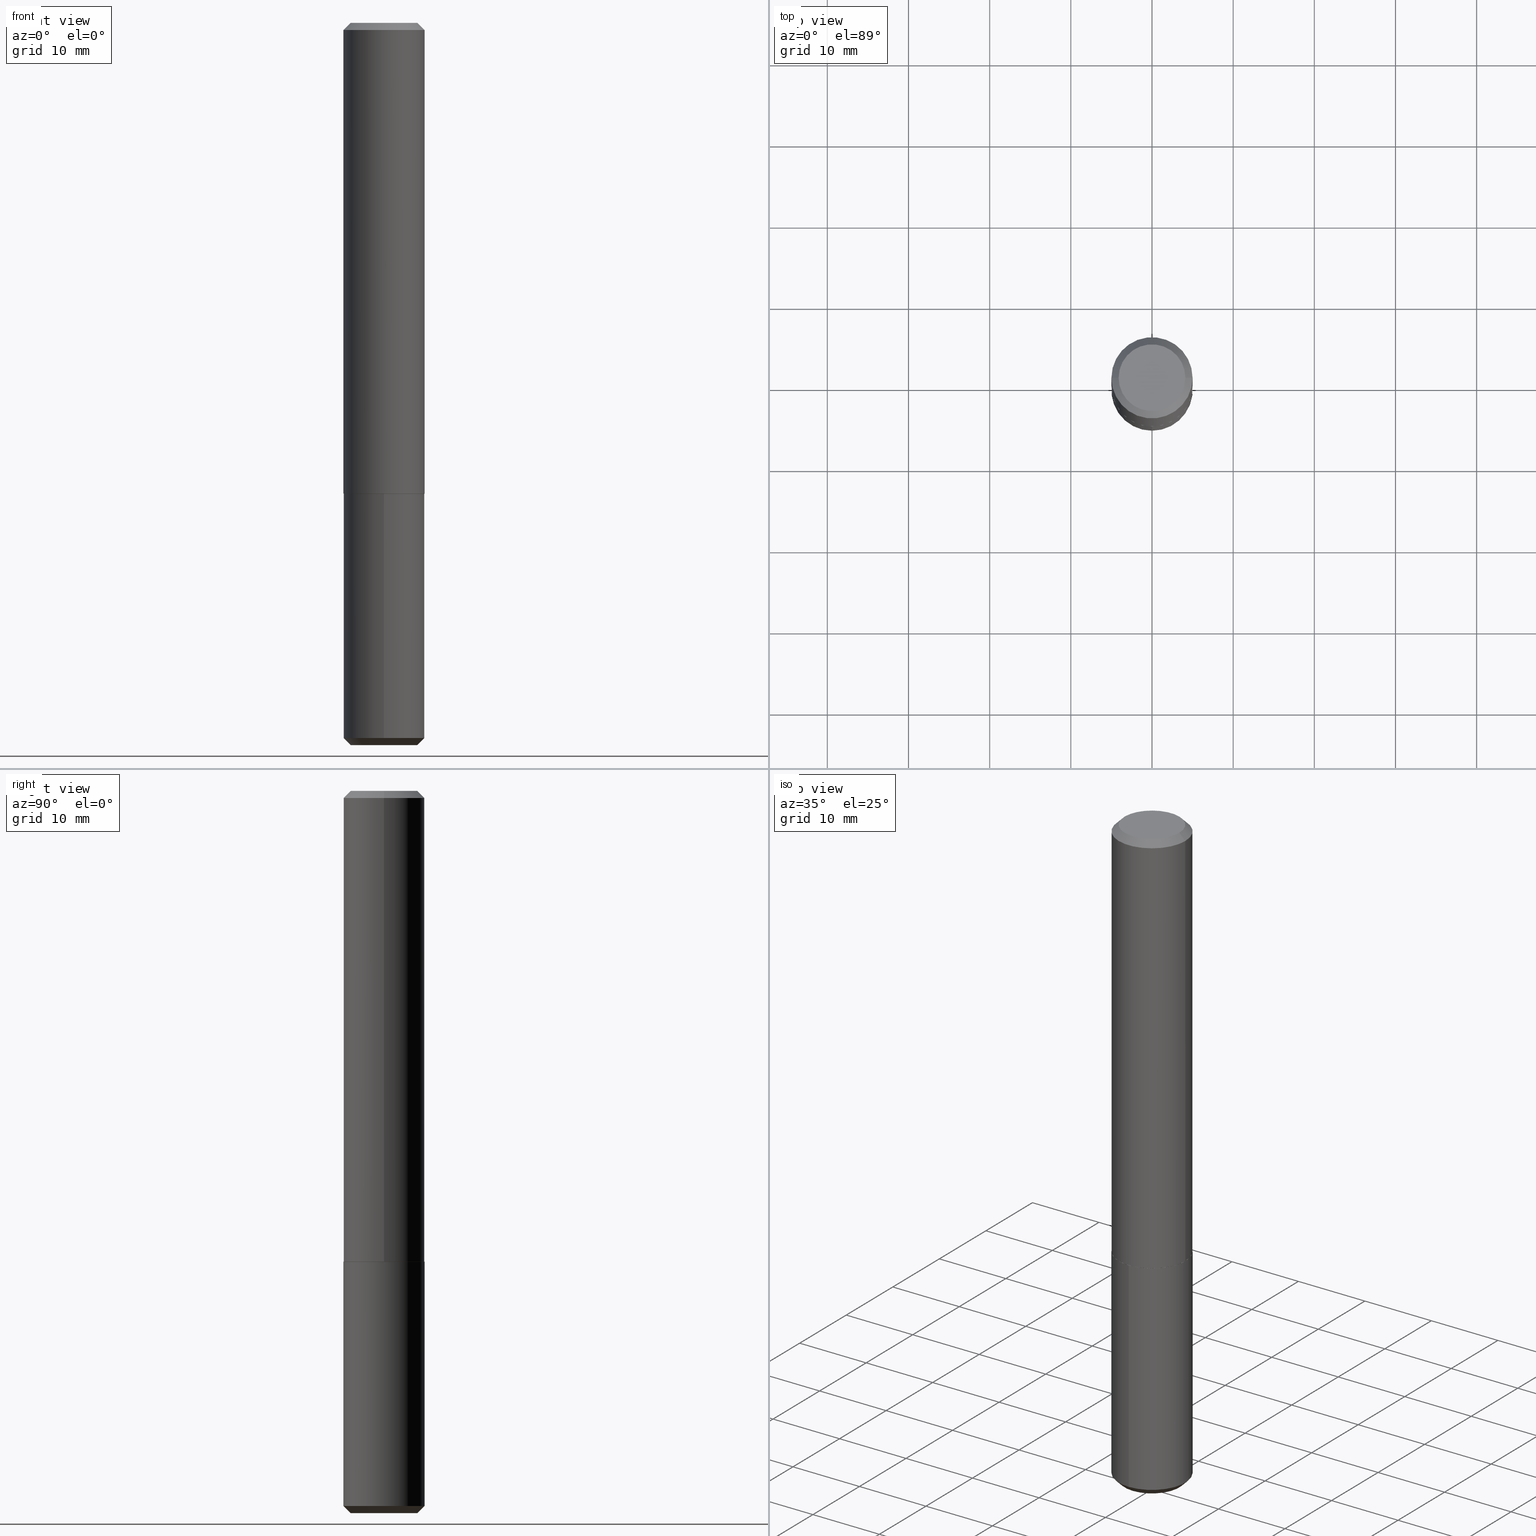
[diagram: canonical four-view strip — front | top / right | iso, engineering-drawing reading convention]
A machine part, canonical four-view strip (front | top / right | iso — engineering-drawing reading convention). The complete STEP part file that produces these views, byte-faithful:
ISO-10303-21;
HEADER;
FILE_DESCRIPTION (( 'STEP AP203' ),
    '1' );
FILE_NAME ('81029.STEP',
    '2024-04-19T13:36:28',
    ( '' ),
    ( '' ),
    'SwSTEP 2.0',
    'SolidWorks 2023',
    '' );
FILE_SCHEMA (( 'CONFIG_CONTROL_DESIGN' ));
ENDSEC;

DATA;
#1 = AXIS2_PLACEMENT_3D ( 'NONE', #25, #352, #266 ) ;
#2 = FACE_OUTER_BOUND ( 'NONE', #52, .T. ) ;
#3 = VERTEX_POINT ( 'NONE', #251 ) ;
#4 = MANIFOLD_SOLID_BREP ( 'Body-Move/Copy2[1]', #363 ) ;
#5 = APPROVAL_PERSON_ORGANIZATION ( #32, #357, #267 ) ;
#6 = PRODUCT ( '81029', '81029', '', ( #392 ) ) ;
#7 = CC_DESIGN_DATE_AND_TIME_ASSIGNMENT ( #298, #131, ( #319 ) ) ;
#8 = AXIS2_PLACEMENT_3D ( 'NONE', #361, #206, #204 ) ;
#9 = CARTESIAN_POINT ( 'NONE',  ( 5.583983472043140562E-29, -7.972448489114438042E-15, -2.283399999999999874 ) ) ;
#10 = ORIENTED_EDGE ( 'NONE', *, *, #294, .F. ) ;
#11 = VERTEX_POINT ( 'NONE', #373 ) ;
#12 = CARTESIAN_POINT ( 'NONE',  ( 8.575801720781588931E-29, -1.222360010435347805E-14, -3.503899999999999793 ) ) ;
#13 = ORIENTED_EDGE ( 'NONE', *, *, #20, .T. ) ;
#14 = CIRCLE ( 'NONE', #8, 0.1968500000000000250 ) ;
#15 = EDGE_CURVE ( 'NONE', #145, #243, #375, .T. ) ;
#16 = CIRCLE ( 'NONE', #216, 0.1618500000000000216 ) ;
#17 = VERTEX_POINT ( 'NONE', #91 ) ;
#18 = APPLICATION_PROTOCOL_DEFINITION ( 'international standard', 'config_control_design', 1994, #221 ) ;
#19 = EDGE_LOOP ( 'NONE', ( #301, #249, #39, #182 ) ) ;
#20 = EDGE_CURVE ( 'NONE', #145, #3, #345, .T. ) ;
#21 = DIRECTION ( 'NONE',  ( -2.438088387897960049E-29, 3.491481338843145188E-15, 1.000000000000000000 ) ) ;
#22 = AXIS2_PLACEMENT_3D ( 'NONE', #86, #404, #312 ) ;
#23 = DIRECTION ( 'NONE',  ( -2.451305406586192978E-29, 3.483122994870167634E-15, 1.000000000000000000 ) ) ;
#24 = AXIS2_PLACEMENT_3D ( 'NONE', #51, #186, #54 ) ;
#25 = CARTESIAN_POINT ( 'NONE',  ( 5.582760737640047761E-29, -7.970702748445015750E-15, -2.282899999999999707 ) ) ;
#26 = CARTESIAN_POINT ( 'NONE',  ( -0.1963500000000006351, -6.574648600275367585E-15, -2.283399999999999874 ) ) ;
#27 = DATE_AND_TIME ( #269, #289 ) ;
#28 = DIRECTION ( 'NONE',  ( -2.451305406586193258E-29, 3.483122994870168029E-15, 1.000000000000000000 ) ) ;
#29 = EDGE_CURVE ( 'NONE', #243, #145, #358, .T. ) ;
#30 = FACE_OUTER_BOUND ( 'NONE', #282, .T. ) ;
#31 = CIRCLE ( 'NONE', #24, 0.1618500000000000216 ) ;
#32 = PERSON_AND_ORGANIZATION ( #193, #142 ) ;
#33 = LINE ( 'NONE', #170, #178 ) ;
#34 = DATE_AND_TIME ( #205, #159 ) ;
#35 = ADVANCED_FACE ( 'NONE', ( #168 ), #379, .T. ) ;
#36 = CARTESIAN_POINT ( 'NONE',  ( 5.582760737640047761E-29, -7.970702748445015750E-15, -2.282899999999999707 ) ) ;
#37 = ORIENTED_EDGE ( 'NONE', *, *, #133, .F. ) ;
#38 = DIRECTION ( 'NONE',  ( 2.445468806185136597E-29, -3.491481338843145583E-15, -1.000000000000000000 ) ) ;
#39 = ORIENTED_EDGE ( 'NONE', *, *, #394, .T. ) ;
#40 = ORIENTED_EDGE ( 'NONE', *, *, #29, .F. ) ;
#41 = ORIENTED_EDGE ( 'NONE', *, *, #15, .T. ) ;
#42 = CC_DESIGN_PERSON_AND_ORGANIZATION_ASSIGNMENT ( #65, #127, ( #109 ) ) ;
#43 = ORIENTED_EDGE ( 'NONE', *, *, #247, .F. ) ;
#44 = ORIENTED_EDGE ( 'NONE', *, *, #306, .F. ) ;
#45 = APPROVAL_PERSON_ORGANIZATION ( #330, #202, #136 ) ;
#46 = DIRECTION ( 'NONE',  ( -1.000000000000000000, 6.982962677686265922E-15, 0.000000000000000000 ) ) ;
#47 = ORIENTED_EDGE ( 'NONE', *, *, #380, .T. ) ;
#48 = CARTESIAN_POINT ( 'NONE',  ( 1.398703375343841999E-15, 0.1968499999999879235, -3.468900000000000095 ) ) ;
#49 = EDGE_CURVE ( 'NONE', #372, #371, #354, .T. ) ;
#50 = VERTEX_POINT ( 'NONE', #26 ) ;
#51 = CARTESIAN_POINT ( 'NONE',  ( -4.406900505805576113E-46, 6.291885972637398948E-32, 1.802067764945330938E-17 ) ) ;
#52 = EDGE_LOOP ( 'NONE', ( #153, #175, #146, #284 ) ) ;
#53 = CIRCLE ( 'NONE', #223, 0.1963500000000006351 ) ;
#54 = DIRECTION ( 'NONE',  ( 1.000000000000000000, -6.982962677686265922E-15, 4.876910603302640738E-29 ) ) ;
#55 = ORIENTED_EDGE ( 'NONE', *, *, #15, .F. ) ;
#56 = CARTESIAN_POINT ( 'NONE',  ( -0.1968500000000001915, 1.398703375343758577E-15, -9.682923725166790684E-30 ) ) ;
#57 = APPROVAL ( #129, 'UNSPECIFIED' ) ;
#58 = PLANE ( 'NONE',  #272 ) ;
#59 = DATE_AND_TIME ( #291, #385 ) ;
#60 = DIRECTION ( 'NONE',  ( 1.000000000000000000, -6.982962677686265922E-15, 4.876910603302640738E-29 ) ) ;
#61 =( GEOMETRIC_REPRESENTATION_CONTEXT ( 3 ) GLOBAL_UNCERTAINTY_ASSIGNED_CONTEXT ( ( #397 ) ) GLOBAL_UNIT_ASSIGNED_CONTEXT ( ( #258, #255, #316 ) ) REPRESENTATION_CONTEXT ( 'NONE', 'WORKASPACE' ) );
#62 = CARTESIAN_POINT ( 'NONE',  ( 5.583983472043140562E-29, -7.972448489114438042E-15, -2.283399999999999874 ) ) ;
#63 = ADVANCED_FACE ( 'NONE', ( #410 ), #265, .F. ) ;
#64 = CARTESIAN_POINT ( 'NONE',  ( 0.1618500000000000216, -1.291531239330079675E-15, 1.802067764946177423E-17 ) ) ;
#65 = PERSON_AND_ORGANIZATION ( #193, #142 ) ;
#66 = FACE_OUTER_BOUND ( 'NONE', #364, .T. ) ;
#67 = PERSON_AND_ORGANIZATION_ROLE ( 'design_supplier' ) ;
#68 = VECTOR ( 'NONE', #181, 39.37007874015748143 ) ;
#69 = LINE ( 'NONE', #234, #253 ) ;
#70 = AXIS2_PLACEMENT_3D ( 'NONE', #313, #248, #192 ) ;
#71 = DIRECTION ( 'NONE',  ( -6.982962677686265133E-15, -1.000000000000000000, 2.775563112689116301E-15 ) ) ;
#72 = FACE_OUTER_BOUND ( 'NONE', #246, .T. ) ;
#73 = ORIENTED_EDGE ( 'NONE', *, *, #79, .T. ) ;
#74 = EDGE_LOOP ( 'NONE', ( #73, #215 ) ) ;
#75 = EDGE_CURVE ( 'NONE', #212, #50, #53, .T. ) ;
#76 = DESIGN_CONTEXT ( 'detailed design', #84, 'design' ) ;
#77 = DIRECTION ( 'NONE',  ( 1.000000000000000000, -6.982962677686265922E-15, 0.000000000000000000 ) ) ;
#78 = ORIENTED_EDGE ( 'NONE', *, *, #394, .F. ) ;
#79 = EDGE_CURVE ( 'NONE', #3, #307, #137, .T. ) ;
#80 = VERTEX_POINT ( 'NONE', #322 ) ;
#81 = SHAPE_DEFINITION_REPRESENTATION ( #239, #154 ) ;
#82 = LINE ( 'NONE', #220, #124 ) ;
#83 = EDGE_LOOP ( 'NONE', ( #149, #224, #13, #180 ) ) ;
#84 = APPLICATION_CONTEXT ( 'configuration controlled 3d designs of mechanical parts and assemblies' ) ;
#85 =( LENGTH_UNIT ( ) NAMED_UNIT ( * ) SI_UNIT ( $, .METRE. ) );
#86 = CARTESIAN_POINT ( 'NONE',  ( 8.490006031551072042E-29, -1.210169079953302144E-14, -3.468899999999999650 ) ) ;
#87 = CONICAL_SURFACE ( 'NONE', #112, 0.1968500000000000250, 0.7853981633974447263 ) ;
#88 = DIRECTION ( 'NONE',  ( 0.000000000000000000, 0.000000000000000000, 1.000000000000000000 ) ) ;
#89 = LINE ( 'NONE', #226, #236 ) ;
#90 = CONICAL_SURFACE ( 'NONE', #334, 0.1968500000000003303, 0.7853981633969702170 ) ;
#91 = CARTESIAN_POINT ( 'NONE',  ( 1.274358396585824356E-15, 0.1618499999999877814, -3.503900000000000237 ) ) ;
#92 = DIRECTION ( 'NONE',  ( 1.000000000000000000, -6.982962677686261977E-15, 0.000000000000000000 ) ) ;
#93 = DIRECTION ( 'NONE',  ( -2.445468806185136597E-29, 3.491481338843145583E-15, 1.000000000000000000 ) ) ;
#94 = CARTESIAN_POINT ( 'NONE',  ( 5.582760737640047761E-29, -7.970702748445015750E-15, -2.282899999999999707 ) ) ;
#95 = LINE ( 'NONE', #158, #150 ) ;
#96 = DIRECTION ( 'NONE',  ( -2.445468806185136877E-29, 3.491481338843145188E-15, 1.000000000000000000 ) ) ;
#97 = APPLICATION_PROTOCOL_DEFINITION ( 'international standard', 'config_control_design', 1994, #84 ) ;
#98 = VECTOR ( 'NONE', #122, 39.37007874015748143 ) ;
#99 = ADVANCED_FACE ( 'NONE', ( #30 ), #58, .F. ) ;
#100 = CONICAL_SURFACE ( 'NONE', #377, 0.1968500000000000250, 0.7853981633974479459 ) ;
#101 = DIRECTION ( 'NONE',  ( 1.000000000000000000, -6.982962677686266711E-15, 4.876176775795935793E-29 ) ) ;
#102 = DATE_AND_TIME ( #165, #225 ) ;
#103 = CARTESIAN_POINT ( 'NONE',  ( 5.583983472043140562E-29, -7.972448489114438042E-15, -2.283399999999999874 ) ) ;
#104 = DIRECTION ( 'NONE',  ( -2.451305406586193258E-29, 3.483122994870168029E-15, 1.000000000000000000 ) ) ;
#105 = ADVANCED_FACE ( 'NONE', ( #227 ), #87, .T. ) ;
#106 = COORDINATED_UNIVERSAL_TIME_OFFSET ( 5, 0, .BEHIND. ) ;
#107 = CIRCLE ( 'NONE', #391, 0.1618500000000000216 ) ;
#108 = DIRECTION ( 'NONE',  ( -2.451305406586193258E-29, 3.483122994870168029E-15, 1.000000000000000000 ) ) ;
#109 = PRODUCT_DEFINITION_FORMATION_WITH_SPECIFIED_SOURCE ( 'ANY', '', #6, .NOT_KNOWN. ) ;
#110 = APPROVAL_DATE_TIME ( #27, #202 ) ;
#111 = CARTESIAN_POINT ( 'NONE',  ( -2.203450252902788057E-46, 3.145942986318699474E-32, 9.010338824726654690E-18 ) ) ;
#112 = AXIS2_PLACEMENT_3D ( 'NONE', #190, #126, #134 ) ;
#113 = EDGE_CURVE ( 'NONE', #11, #372, #325, .T. ) ;
#114 = ORIENTED_EDGE ( 'NONE', *, *, #264, .T. ) ;
#115 = CARTESIAN_POINT ( 'NONE',  ( -1.130192509383436643E-15, -0.1618500000000122341, -3.503899999999999348 ) ) ;
#116 = ORIENTED_EDGE ( 'NONE', *, *, #201, .T. ) ;
#117 = EDGE_CURVE ( 'NONE', #11, #219, #347, .T. ) ;
#118 = ORIENTED_EDGE ( 'NONE', *, *, #388, .T. ) ;
#119 = EDGE_LOOP ( 'NONE', ( #43, #114, #367, #40 ) ) ;
#120 = ORIENTED_EDGE ( 'NONE', *, *, #362, .T. ) ;
#121 = PLANE ( 'NONE',  #70 ) ;
#122 = DIRECTION ( 'NONE',  ( -2.451305406586192978E-29, 3.483122994870167634E-15, 1.000000000000000000 ) ) ;
#123 = CC_DESIGN_PERSON_AND_ORGANIZATION_ASSIGNMENT ( #260, #293, ( #135 ) ) ;
#124 = VECTOR ( 'NONE', #250, 39.37007874015748143 ) ;
#125 = FACE_OUTER_BOUND ( 'NONE', #365, .T. ) ;
#126 = DIRECTION ( 'NONE',  ( 2.445468806185136597E-29, -3.491481338843145583E-15, -1.000000000000000000 ) ) ;
#127 = PERSON_AND_ORGANIZATION_ROLE ( 'creator' ) ;
#128 = CARTESIAN_POINT ( 'NONE',  ( 0.000000000000000000, 0.000000000000000000, 0.000000000000000000 ) ) ;
#129 = APPROVAL_STATUS ( 'not_yet_approved' ) ;
#130 = DIRECTION ( 'NONE',  ( -0.7071067811862092878, 7.493145998869131426E-15, 0.7071067811868855246 ) ) ;
#131 = DATE_TIME_ROLE ( 'classification_date' ) ;
#132 = DIMENSIONAL_EXPONENTS ( 1.000000000000000000, 0.000000000000000000, 0.000000000000000000, 0.000000000000000000, 0.000000000000000000, 0.000000000000000000, 0.000000000000000000 ) ;
#133 = EDGE_CURVE ( 'NONE', #219, #371, #333, .T. ) ;
#134 = DIRECTION ( 'NONE',  ( -1.000000000000000000, 6.982962677686265922E-15, 0.000000000000000000 ) ) ;
#135 = PRODUCT_DEFINITION ( 'UNKNOWN', '', #109, #76 ) ;
#136 = APPROVAL_ROLE ( '' ) ;
#137 = CIRCLE ( 'NONE', #235, 0.1968500000000000250 ) ;
#138 = DIRECTION ( 'NONE',  ( -2.451305406586193258E-29, 3.483122994870168029E-15, 1.000000000000000000 ) ) ;
#139 = CIRCLE ( 'NONE', #346, 0.1968500000000000250 ) ;
#140 = ADVANCED_FACE ( 'NONE', ( #125 ), #405, .T. ) ;
#141 = APPROVAL_DATE_TIME ( #34, #357 ) ;
#142 = ORGANIZATION ( 'UNSPECIFIED', 'UNSPECIFIED', '' ) ;
#143 = DIRECTION ( 'NONE',  ( 0.7071067811862092878, -2.468850131078715470E-15, 0.7071067811868855246 ) ) ;
#144 = ADVANCED_FACE ( 'NONE', ( #161 ), #290, .T. ) ;
#145 = VERTEX_POINT ( 'NONE', #326 ) ;
#146 = ORIENTED_EDGE ( 'NONE', *, *, #117, .T. ) ;
#147 = DIRECTION ( 'NONE',  ( 2.438088387897960049E-29, -3.491481338843145188E-15, -1.000000000000000000 ) ) ;
#148 = AXIS2_PLACEMENT_3D ( 'NONE', #275, #366, #369 ) ;
#149 = ORIENTED_EDGE ( 'NONE', *, *, #380, .F. ) ;
#150 = VECTOR ( 'NONE', #320, 39.37007874015748143 ) ;
#151 = ORIENTED_EDGE ( 'NONE', *, *, #133, .T. ) ;
#152 = DIRECTION ( 'NONE',  ( -6.982962677686265922E-15, -1.000000000000000000, 3.375777563996617685E-15 ) ) ;
#153 = ORIENTED_EDGE ( 'NONE', *, *, #49, .F. ) ;
#154 = ADVANCED_BREP_SHAPE_REPRESENTATION ( '81029', ( #4, #276, #406 ), #61 ) ;
#155 = CARTESIAN_POINT ( 'NONE',  ( 5.582760737640047761E-29, -7.970702748445015750E-15, -2.282899999999999707 ) ) ;
#156 = AXIS2_PLACEMENT_3D ( 'NONE', #111, #147, #214 ) ;
#157 = DIRECTION ( 'NONE',  ( -2.445468806185136597E-29, 3.491481338843145583E-15, 1.000000000000000000 ) ) ;
#158 = CARTESIAN_POINT ( 'NONE',  ( 0.1968500000000000250, -1.472690877720836990E-15, -0.03500000000000023231 ) ) ;
#159 = LOCAL_TIME ( 9, 36, 28.00000000000000000, #106 ) ;
#160 = ADVANCED_FACE ( 'NONE', ( #408 ), #295, .T. ) ;
#161 = FACE_OUTER_BOUND ( 'NONE', #280, .T. ) ;
#162 = CARTESIAN_POINT ( 'NONE',  ( 5.583983472043140562E-29, -7.972448489114438042E-15, -2.283399999999999874 ) ) ;
#163 = COORDINATED_UNIVERSAL_TIME_OFFSET ( 5, 0, .BEHIND. ) ;
#164 = CARTESIAN_POINT ( 'NONE',  ( 8.490006031551072042E-29, -1.210169079953302144E-14, -3.468899999999999650 ) ) ;
#165 = CALENDAR_DATE ( 2024, 19, 4 ) ;
#166 = CC_DESIGN_APPROVAL ( #202, ( #135 ) ) ;
#167 = CIRCLE ( 'NONE', #230, 0.1963500000000006351 ) ;
#168 = FACE_OUTER_BOUND ( 'NONE', #83, .T. ) ;
#169 = APPROVAL_STATUS ( 'not_yet_approved' ) ;
#170 = CARTESIAN_POINT ( 'NONE',  ( -1.374596203102456609E-15, -0.1968500000000120986, -3.468899999999999206 ) ) ;
#171 = CARTESIAN_POINT ( 'NONE',  ( 1.398703375343841999E-15, 0.1968499999999920591, -2.283400000000000762 ) ) ;
#172 = ORIENTED_EDGE ( 'NONE', *, *, #113, .F. ) ;
#173 = PRODUCT_RELATED_PRODUCT_CATEGORY ( 'detail', '', ( #6 ) ) ;
#174 = CARTESIAN_POINT ( 'NONE',  ( 8.559140821648035612E-31, -1.222018468595109198E-16, -0.03500000000000023231 ) ) ;
#175 = ORIENTED_EDGE ( 'NONE', *, *, #306, .T. ) ;
#176 = CLOSED_SHELL ( 'NONE', ( #283, #160, #396, #99, #140, #268, #105, #218 ) ) ;
#177 = ORIENTED_EDGE ( 'NONE', *, *, #113, .T. ) ;
#178 = VECTOR ( 'NONE', #331, 39.37007874015748143 ) ;
#179 = DIRECTION ( 'NONE',  ( -2.445468806185136597E-29, 3.491481338843145583E-15, 1.000000000000000000 ) ) ;
#180 = ORIENTED_EDGE ( 'NONE', *, *, #279, .F. ) ;
#181 = DIRECTION ( 'NONE',  ( 5.024295867788060023E-15, 0.7071067811865496822, 0.7071067811865453523 ) ) ;
#182 = ORIENTED_EDGE ( 'NONE', *, *, #328, .T. ) ;
#183 = VECTOR ( 'NONE', #96, 39.37007874015748143 ) ;
#184 = ORIENTED_EDGE ( 'NONE', *, *, #237, .T. ) ;
#185 = CC_DESIGN_PERSON_AND_ORGANIZATION_ASSIGNMENT ( #387, #416, ( #6 ) ) ;
#186 = DIRECTION ( 'NONE',  ( -2.445468806185136597E-29, 3.491481338843145583E-15, 1.000000000000000000 ) ) ;
#187 = CARTESIAN_POINT ( 'NONE',  ( -1.374596203102485599E-15, -0.1968500000000079631, -2.283399999999998986 ) ) ;
#188 = DIRECTION ( 'NONE',  ( -2.451305406586193258E-29, 3.483122994870168029E-15, 1.000000000000000000 ) ) ;
#189 = DIRECTION ( 'NONE',  ( -2.451305406586193258E-29, 3.483122994870168029E-15, 1.000000000000000000 ) ) ;
#190 = CARTESIAN_POINT ( 'NONE',  ( 8.559140821648035612E-31, -1.222018468595109198E-16, -0.03500000000000023231 ) ) ;
#191 = VECTOR ( 'NONE', #323, 39.37007874015748143 ) ;
#192 = DIRECTION ( 'NONE',  ( -6.982962677686265922E-15, -1.000000000000000000, 3.483122994870167634E-15 ) ) ;
#193 = PERSON ( 'UNSPECIFIED', 'UNSPECIFIED', 'UNSPECIFIED', ('UNSPECIFIED'), ('UNSPECIFIED'), ('UNSPECIFIED') ) ;
#194 = DIRECTION ( 'NONE',  ( -6.982962677686265133E-15, -1.000000000000000000, 4.163344669033674845E-15 ) ) ;
#195 = APPROVAL_STATUS ( 'not_yet_approved' ) ;
#196 = CARTESIAN_POINT ( 'NONE',  ( 0.1963500000000006351, -9.343553210878141377E-15, -2.283399999999999874 ) ) ;
#197 = PERSON_AND_ORGANIZATION ( #193, #142 ) ;
#198 = PLANE ( 'NONE',  #156 ) ;
#199 = DATE_TIME_ROLE ( 'creation_date' ) ;
#200 = AXIS2_PLACEMENT_3D ( 'NONE', #382, #287, #229 ) ;
#201 = EDGE_CURVE ( 'NONE', #50, #372, #231, .T. ) ;
#202 = APPROVAL ( #195, 'UNSPECIFIED' ) ;
#203 = AXIS2_PLACEMENT_3D ( 'NONE', #36, #179, #299 ) ;
#204 = DIRECTION ( 'NONE',  ( -6.982962677686265133E-15, -1.000000000000000000, 4.163344669033674845E-15 ) ) ;
#205 = CALENDAR_DATE ( 2024, 19, 4 ) ;
#206 = DIRECTION ( 'NONE',  ( -2.451305406586193258E-29, 3.483122994870168029E-15, 1.000000000000000000 ) ) ;
#207 = CARTESIAN_POINT ( 'NONE',  ( 8.490006031551072042E-29, -1.210169079953302144E-14, -3.468899999999999650 ) ) ;
#208 = AXIS2_PLACEMENT_3D ( 'NONE', #62, #292, #261 ) ;
#209 = EDGE_LOOP ( 'NONE', ( #177, #401, #37, #378 ) ) ;
#210 = VERTEX_POINT ( 'NONE', #64 ) ;
#211 = ORIENTED_EDGE ( 'NONE', *, *, #237, .F. ) ;
#212 = VERTEX_POINT ( 'NONE', #196 ) ;
#213 = CC_DESIGN_DATE_AND_TIME_ASSIGNMENT ( #59, #199, ( #135 ) ) ;
#214 = DIRECTION ( 'NONE',  ( -1.000000000000000000, 6.982962677686265922E-15, -4.876176775795935793E-29 ) ) ;
#215 = ORIENTED_EDGE ( 'NONE', *, *, #279, .T. ) ;
#216 = AXIS2_PLACEMENT_3D ( 'NONE', #381, #402, #60 ) ;
#217 = ORIENTED_EDGE ( 'NONE', *, *, #355, .T. ) ;
#218 = ADVANCED_FACE ( 'NONE', ( #66 ), #198, .F. ) ;
#219 = VERTEX_POINT ( 'NONE', #340 ) ;
#220 = CARTESIAN_POINT ( 'NONE',  ( -0.1968500000000000250, 1.252394356243030836E-15, -0.03500000000000023231 ) ) ;
#221 = APPLICATION_CONTEXT ( 'configuration controlled 3d designs of mechanical parts and assemblies' ) ;
#222 = FACE_OUTER_BOUND ( 'NONE', #403, .T. ) ;
#223 = AXIS2_PLACEMENT_3D ( 'NONE', #384, #93, #233 ) ;
#224 = ORIENTED_EDGE ( 'NONE', *, *, #29, .T. ) ;
#225 = LOCAL_TIME ( 9, 36, 28.00000000000000000, #262 ) ;
#226 = CARTESIAN_POINT ( 'NONE',  ( 1.398703375343812811E-15, 0.1968499999999920591, -2.283400000000000762 ) ) ;
#227 = FACE_OUTER_BOUND ( 'NONE', #19, .T. ) ;
#228 = CARTESIAN_POINT ( 'NONE',  ( 5.583983472043140562E-29, -7.972448489114438042E-15, -2.283399999999999874 ) ) ;
#229 = DIRECTION ( 'NONE',  ( 1.000000000000000000, -6.982962677686265922E-15, 0.000000000000000000 ) ) ;
#230 = AXIS2_PLACEMENT_3D ( 'NONE', #9, #305, #398 ) ;
#231 = LINE ( 'NONE', #353, #245 ) ;
#232 = SECURITY_CLASSIFICATION_LEVEL ( 'unclassified' ) ;
#233 = DIRECTION ( 'NONE',  ( 1.000000000000000000, -6.982962677686262766E-15, 0.000000000000000000 ) ) ;
#234 = CARTESIAN_POINT ( 'NONE',  ( 0.1968500000000003303, -9.345298951547558936E-15, -2.282899999999999707 ) ) ;
#235 = AXIS2_PLACEMENT_3D ( 'NONE', #259, #257, #315 ) ;
#236 = VECTOR ( 'NONE', #23, 39.37007874015748143 ) ;
#237 = EDGE_CURVE ( 'NONE', #212, #11, #69, .T. ) ;
#238 = DIRECTION ( 'NONE',  ( -6.982962677686265922E-15, -1.000000000000000000, 3.375777563996617685E-15 ) ) ;
#239 = PRODUCT_DEFINITION_SHAPE ( 'NONE', 'NONE',  #135 ) ;
#240 = ORIENTED_EDGE ( 'NONE', *, *, #339, .T. ) ;
#241 = AXIS2_PLACEMENT_3D ( 'NONE', #360, #104, #71 ) ;
#242 = LINE ( 'NONE', #48, #68 ) ;
#243 = VERTEX_POINT ( 'NONE', #244 ) ;
#244 = CARTESIAN_POINT ( 'NONE',  ( 1.398703375343841012E-15, 0.1968499999999877847, -3.468900000000000095 ) ) ;
#245 = VECTOR ( 'NONE', #130, 39.37007874015748854 ) ;
#246 = EDGE_LOOP ( 'NONE', ( #120, #343, #55, #10 ) ) ;
#247 = EDGE_CURVE ( 'NONE', #17, #243, #242, .T. ) ;
#248 = DIRECTION ( 'NONE',  ( -2.451305406586193258E-29, 3.483122994870167634E-15, 1.000000000000000000 ) ) ;
#249 = ORIENTED_EDGE ( 'NONE', *, *, #339, .F. ) ;
#250 = DIRECTION ( 'NONE',  ( -0.7071067811865450192, 2.468850131082230634E-15, -0.7071067811865500152 ) ) ;
#251 = CARTESIAN_POINT ( 'NONE',  ( -1.374596203102485599E-15, -0.1968500000000079631, -2.283399999999998986 ) ) ;
#252 = CARTESIAN_POINT ( 'NONE',  ( -0.1968500000000000250, -2.647748922308503107E-15, -0.03500000000000023231 ) ) ;
#253 = VECTOR ( 'NONE', #143, 39.37007874015748854 ) ;
#254 = ORIENTED_EDGE ( 'NONE', *, *, #75, .F. ) ;
#255 =( NAMED_UNIT ( * ) PLANE_ANGLE_UNIT ( ) SI_UNIT ( $, .RADIAN. ) );
#256 = CONICAL_SURFACE ( 'NONE', #241, 0.1968500000000000250, 0.7853981633974479459 ) ;
#257 = DIRECTION ( 'NONE',  ( -2.451305406586193258E-29, 3.483122994870168029E-15, 1.000000000000000000 ) ) ;
#258 =( CONVERSION_BASED_UNIT ( 'INCH', #288 ) LENGTH_UNIT ( ) NAMED_UNIT ( #132 ) );
#259 = CARTESIAN_POINT ( 'NONE',  ( 5.583983472043140562E-29, -7.972448489114438042E-15, -2.283399999999999874 ) ) ;
#260 = PERSON_AND_ORGANIZATION ( #193, #142 ) ;
#261 = DIRECTION ( 'NONE',  ( -6.982962677686265133E-15, -1.000000000000000000, 4.163344669033674845E-15 ) ) ;
#262 = COORDINATED_UNIVERSAL_TIME_OFFSET ( 5, 0, .BEHIND. ) ;
#263 = AXIS2_PLACEMENT_3D ( 'NONE', #285, #189, #152 ) ;
#264 = EDGE_CURVE ( 'NONE', #17, #336, #107, .T. ) ;
#265 = PLANE ( 'NONE',  #395 ) ;
#266 = DIRECTION ( 'NONE',  ( 1.000000000000000000, -6.982962677686261977E-15, 0.000000000000000000 ) ) ;
#267 = APPROVAL_ROLE ( '' ) ;
#268 = ADVANCED_FACE ( 'NONE', ( #2 ), #359, .T. ) ;
#269 = CALENDAR_DATE ( 2024, 19, 4 ) ;
#270 = CC_DESIGN_APPROVAL ( #57, ( #109 ) ) ;
#271 = EDGE_LOOP ( 'NONE', ( #400, #116, #172, #211 ) ) ;
#272 = AXIS2_PLACEMENT_3D ( 'NONE', #228, #21, #349 ) ;
#273 = ADVANCED_FACE ( 'NONE', ( #72 ), #256, .T. ) ;
#274 = LOCAL_TIME ( 9, 36, 28.00000000000000000, #327 ) ;
#275 = CARTESIAN_POINT ( 'NONE',  ( 0.000000000000000000, 0.000000000000000000, 0.000000000000000000 ) ) ;
#276 = MANIFOLD_SOLID_BREP ( 'Body-Move/Copy2[2]', #176 ) ;
#277 = ORIENTED_EDGE ( 'NONE', *, *, #264, .F. ) ;
#278 = ORIENTED_EDGE ( 'NONE', *, *, #355, .F. ) ;
#279 = EDGE_CURVE ( 'NONE', #307, #3, #14, .T. ) ;
#280 = EDGE_LOOP ( 'NONE', ( #41, #47, #309, #304 ) ) ;
#281 = CONICAL_SURFACE ( 'NONE', #412, 0.1968500000000000250, 0.7853981633974447263 ) ;
#282 = EDGE_LOOP ( 'NONE', ( #254, #344 ) ) ;
#283 = ADVANCED_FACE ( 'NONE', ( #329 ), #281, .T. ) ;
#284 = ORIENTED_EDGE ( 'NONE', *, *, #328, .F. ) ;
#285 = CARTESIAN_POINT ( 'NONE',  ( 8.575801720781588931E-29, -1.222360010435347805E-14, -3.503899999999999793 ) ) ;
#286 = AXIS2_PLACEMENT_3D ( 'NONE', #128, #389, #101 ) ;
#287 = DIRECTION ( 'NONE',  ( -2.445468806185136597E-29, 3.491481338843145583E-15, 1.000000000000000000 ) ) ;
#288 = LENGTH_MEASURE_WITH_UNIT ( LENGTH_MEASURE( 0.02539999999999999897 ), #85 );
#289 = LOCAL_TIME ( 9, 36, 28.00000000000000000, #163 ) ;
#290 = CYLINDRICAL_SURFACE ( 'NONE', #338, 0.1968500000000000250 ) ;
#291 = CALENDAR_DATE ( 2024, 19, 4 ) ;
#292 = DIRECTION ( 'NONE',  ( -2.451305406586193258E-29, 3.483122994870168029E-15, 1.000000000000000000 ) ) ;
#293 = PERSON_AND_ORGANIZATION_ROLE ( 'creator' ) ;
#294 = EDGE_CURVE ( 'NONE', #336, #145, #33, .T. ) ;
#295 = CYLINDRICAL_SURFACE ( 'NONE', #286, 0.1968500000000001915 ) ;
#296 = CALENDAR_DATE ( 2024, 19, 4 ) ;
#297 = DIRECTION ( 'NONE',  ( 6.982962677686265922E-15, 1.000000000000000000, -3.483122994870167634E-15 ) ) ;
#298 = DATE_AND_TIME ( #296, #274 ) ;
#299 = DIRECTION ( 'NONE',  ( 1.000000000000000000, -6.982962677686261977E-15, 0.000000000000000000 ) ) ;
#300 = FACE_OUTER_BOUND ( 'NONE', #119, .T. ) ;
#301 = ORIENTED_EDGE ( 'NONE', *, *, #388, .F. ) ;
#302 = DIRECTION ( 'NONE',  ( -2.445468806185136597E-29, 3.491481338843145583E-15, 1.000000000000000000 ) ) ;
#303 = CIRCLE ( 'NONE', #263, 0.1618500000000000216 ) ;
#304 = ORIENTED_EDGE ( 'NONE', *, *, #20, .F. ) ;
#305 = DIRECTION ( 'NONE',  ( -2.445468806185136597E-29, 3.491481338843145583E-15, 1.000000000000000000 ) ) ;
#306 = EDGE_CURVE ( 'NONE', #372, #11, #393, .T. ) ;
#307 = VERTEX_POINT ( 'NONE', #171 ) ;
#308 = FACE_OUTER_BOUND ( 'NONE', #271, .T. ) ;
#309 = ORIENTED_EDGE ( 'NONE', *, *, #79, .F. ) ;
#310 = ORIENTED_EDGE ( 'NONE', *, *, #201, .F. ) ;
#311 = CC_DESIGN_SECURITY_CLASSIFICATION ( #319, ( #109 ) ) ;
#312 = DIRECTION ( 'NONE',  ( -6.982962677686265133E-15, -1.000000000000000000, 2.775563112689116301E-15 ) ) ;
#313 = CARTESIAN_POINT ( 'NONE',  ( 8.568678149992099474E-29, -1.223380146317249786E-14, -3.503899999999999793 ) ) ;
#314 = CC_DESIGN_PERSON_AND_ORGANIZATION_ASSIGNMENT ( #197, #324, ( #319 ) ) ;
#315 = DIRECTION ( 'NONE',  ( -6.982962677686265133E-15, -1.000000000000000000, 4.163344669033674845E-15 ) ) ;
#316 =( NAMED_UNIT ( * ) SI_UNIT ( $, .STERADIAN. ) SOLID_ANGLE_UNIT ( ) );
#317 = AXIS2_PLACEMENT_3D ( 'NONE', #164, #188, #386 ) ;
#318 = DIRECTION ( 'NONE',  ( -2.445468806185136597E-29, 3.491481338843145583E-15, 1.000000000000000000 ) ) ;
#319 = SECURITY_CLASSIFICATION ( '', '', #232 ) ;
#320 = DIRECTION ( 'NONE',  ( 0.7071067811865450192, -7.319954787623246579E-15, -0.7071067811865500152 ) ) ;
#321 = ADVANCED_FACE ( 'NONE', ( #300 ), #100, .T. ) ;
#322 = CARTESIAN_POINT ( 'NONE',  ( -0.1618500000000000216, 1.191293432813276437E-15, 1.802067764944519274E-17 ) ) ;
#323 = DIRECTION ( 'NONE',  ( -2.445468806185136877E-29, 3.491481338843145188E-15, 1.000000000000000000 ) ) ;
#324 = PERSON_AND_ORGANIZATION_ROLE ( 'classification_officer' ) ;
#325 = CIRCLE ( 'NONE', #368, 0.1968500000000003303 ) ;
#326 = CARTESIAN_POINT ( 'NONE',  ( -1.374596203102457595E-15, -0.1968500000000122374, -3.468899999999999206 ) ) ;
#327 = COORDINATED_UNIVERSAL_TIME_OFFSET ( 5, 0, .BEHIND. ) ;
#328 = EDGE_CURVE ( 'NONE', #371, #219, #139, .T. ) ;
#329 = FACE_OUTER_BOUND ( 'NONE', #337, .T. ) ;
#330 = PERSON_AND_ORGANIZATION ( #193, #142 ) ;
#331 = DIRECTION ( 'NONE',  ( -4.937700262164545676E-15, -0.7071067811865447972, 0.7071067811865502373 ) ) ;
#332 = DIRECTION ( 'NONE',  ( -6.982962677686265133E-15, -1.000000000000000000, 2.775563112689116301E-15 ) ) ;
#333 = CIRCLE ( 'NONE', #200, 0.1968500000000000250 ) ;
#334 = AXIS2_PLACEMENT_3D ( 'NONE', #94, #157, #92 ) ;
#335 = EDGE_CURVE ( 'NONE', #50, #212, #167, .T. ) ;
#336 = VERTEX_POINT ( 'NONE', #115 ) ;
#337 = EDGE_LOOP ( 'NONE', ( #278, #118, #151, #78 ) ) ;
#338 = AXIS2_PLACEMENT_3D ( 'NONE', #162, #28, #194 ) ;
#339 = EDGE_CURVE ( 'NONE', #80, #210, #16, .T. ) ;
#340 = CARTESIAN_POINT ( 'NONE',  ( 0.1968500000000000250, -1.496798049962052577E-15, -0.03500000000000023231 ) ) ;
#341 = APPROVAL_PERSON_ORGANIZATION ( #414, #57, #356 ) ;
#342 = ORIENTED_EDGE ( 'NONE', *, *, #362, .F. ) ;
#343 = ORIENTED_EDGE ( 'NONE', *, *, #247, .T. ) ;
#344 = ORIENTED_EDGE ( 'NONE', *, *, #335, .F. ) ;
#345 = LINE ( 'NONE', #187, #98 ) ;
#346 = AXIS2_PLACEMENT_3D ( 'NONE', #174, #302, #77 ) ;
#347 = LINE ( 'NONE', #411, #191 ) ;
#348 = DIRECTION ( 'NONE',  ( 1.000000000000000000, 0.000000000000000000, 0.000000000000000000 ) ) ;
#349 = DIRECTION ( 'NONE',  ( 1.000000000000000000, -6.982962677686265922E-15, 4.876176775795935793E-29 ) ) ;
#350 = COORDINATED_UNIVERSAL_TIME_OFFSET ( 5, 0, .BEHIND. ) ;
#351 = ADVANCED_FACE ( 'NONE', ( #222 ), #121, .F. ) ;
#352 = DIRECTION ( 'NONE',  ( -2.445468806185136597E-29, 3.491481338843145583E-15, 1.000000000000000000 ) ) ;
#353 = CARTESIAN_POINT ( 'NONE',  ( -0.1968500000000003303, -6.571999373101257173E-15, -2.282899999999999707 ) ) ;
#354 = LINE ( 'NONE', #56, #183 ) ;
#355 = EDGE_CURVE ( 'NONE', #210, #80, #31, .T. ) ;
#356 = APPROVAL_ROLE ( '' ) ;
#357 = APPROVAL ( #169, 'UNSPECIFIED' ) ;
#358 = CIRCLE ( 'NONE', #317, 0.1968500000000000250 ) ;
#359 = CYLINDRICAL_SURFACE ( 'NONE', #148, 0.1968500000000001915 ) ;
#360 = CARTESIAN_POINT ( 'NONE',  ( 8.490006031551072042E-29, -1.210169079953302144E-14, -3.468899999999999650 ) ) ;
#361 = CARTESIAN_POINT ( 'NONE',  ( 5.583983472043140562E-29, -7.972448489114438042E-15, -2.283399999999999874 ) ) ;
#362 = EDGE_CURVE ( 'NONE', #336, #17, #303, .T. ) ;
#363 = CLOSED_SHELL ( 'NONE', ( #144, #273, #321, #35, #63, #351 ) ) ;
#364 = EDGE_LOOP ( 'NONE', ( #240, #217 ) ) ;
#365 = EDGE_LOOP ( 'NONE', ( #310, #399, #184, #44 ) ) ;
#366 = DIRECTION ( 'NONE',  ( -2.445468806185136597E-29, 3.491481338843145583E-15, 1.000000000000000000 ) ) ;
#367 = ORIENTED_EDGE ( 'NONE', *, *, #294, .T. ) ;
#368 = AXIS2_PLACEMENT_3D ( 'NONE', #155, #318, #413 ) ;
#369 = DIRECTION ( 'NONE',  ( 1.000000000000000000, -6.982962677686266711E-15, 4.876176775795935793E-29 ) ) ;
#370 = CC_DESIGN_APPROVAL ( #357, ( #319 ) ) ;
#371 = VERTEX_POINT ( 'NONE', #252 ) ;
#372 = VERTEX_POINT ( 'NONE', #376 ) ;
#373 = CARTESIAN_POINT ( 'NONE',  ( 0.1968500000000003303, -9.345298951547558936E-15, -2.282899999999999707 ) ) ;
#374 = CARTESIAN_POINT ( 'NONE',  ( 0.000000000000000000, 0.000000000000000000, 0.000000000000000000 ) ) ;
#375 = CIRCLE ( 'NONE', #22, 0.1968500000000000250 ) ;
#376 = CARTESIAN_POINT ( 'NONE',  ( -0.1968500000000003303, -6.571999373101257173E-15, -2.282899999999999707 ) ) ;
#377 = AXIS2_PLACEMENT_3D ( 'NONE', #207, #138, #332 ) ;
#378 = ORIENTED_EDGE ( 'NONE', *, *, #117, .F. ) ;
#379 = CYLINDRICAL_SURFACE ( 'NONE', #208, 0.1968500000000000250 ) ;
#380 = EDGE_CURVE ( 'NONE', #243, #307, #89, .T. ) ;
#381 = CARTESIAN_POINT ( 'NONE',  ( -4.406900505805576113E-46, 6.291885972637398948E-32, 1.802067764945330938E-17 ) ) ;
#382 = CARTESIAN_POINT ( 'NONE',  ( 8.559140821648035612E-31, -1.222018468595109198E-16, -0.03500000000000023231 ) ) ;
#383 = PERSON_AND_ORGANIZATION ( #193, #142 ) ;
#384 = CARTESIAN_POINT ( 'NONE',  ( 5.583983472043140562E-29, -7.972448489114438042E-15, -2.283399999999999874 ) ) ;
#385 = LOCAL_TIME ( 9, 36, 28.00000000000000000, #350 ) ;
#386 = DIRECTION ( 'NONE',  ( -6.982962677686265133E-15, -1.000000000000000000, 2.775563112689116301E-15 ) ) ;
#387 = PERSON_AND_ORGANIZATION ( #193, #142 ) ;
#388 = EDGE_CURVE ( 'NONE', #210, #219, #95, .T. ) ;
#389 = DIRECTION ( 'NONE',  ( -2.445468806185136597E-29, 3.491481338843145583E-15, 1.000000000000000000 ) ) ;
#390 = CC_DESIGN_PERSON_AND_ORGANIZATION_ASSIGNMENT ( #383, #67, ( #109 ) ) ;
#391 = AXIS2_PLACEMENT_3D ( 'NONE', #12, #108, #238 ) ;
#392 = MECHANICAL_CONTEXT ( 'NONE', #221, 'mechanical' ) ;
#393 = CIRCLE ( 'NONE', #203, 0.1968500000000003303 ) ;
#394 = EDGE_CURVE ( 'NONE', #80, #371, #82, .T. ) ;
#395 = AXIS2_PLACEMENT_3D ( 'NONE', #103, #407, #297 ) ;
#396 = ADVANCED_FACE ( 'NONE', ( #308 ), #90, .T. ) ;
#397 = UNCERTAINTY_MEASURE_WITH_UNIT (LENGTH_MEASURE( 1.000000000000000082E-05 ), #258, 'distance_accuracy_value', 'NONE');
#398 = DIRECTION ( 'NONE',  ( 1.000000000000000000, -6.982962677686262766E-15, 0.000000000000000000 ) ) ;
#399 = ORIENTED_EDGE ( 'NONE', *, *, #335, .T. ) ;
#400 = ORIENTED_EDGE ( 'NONE', *, *, #75, .T. ) ;
#401 = ORIENTED_EDGE ( 'NONE', *, *, #49, .T. ) ;
#402 = DIRECTION ( 'NONE',  ( -2.445468806185136597E-29, 3.491481338843145583E-15, 1.000000000000000000 ) ) ;
#403 = EDGE_LOOP ( 'NONE', ( #342, #277 ) ) ;
#404 = DIRECTION ( 'NONE',  ( -2.451305406586193258E-29, 3.483122994870168029E-15, 1.000000000000000000 ) ) ;
#405 = CONICAL_SURFACE ( 'NONE', #1, 0.1968500000000003303, 0.7853981633969702170 ) ;
#406 = AXIS2_PLACEMENT_3D ( 'NONE', #374, #88, #348 ) ;
#407 = DIRECTION ( 'NONE',  ( 2.451305406586193258E-29, -3.483122994870167634E-15, -1.000000000000000000 ) ) ;
#408 = FACE_OUTER_BOUND ( 'NONE', #209, .T. ) ;
#409 = APPROVAL_DATE_TIME ( #102, #57 ) ;
#410 = FACE_OUTER_BOUND ( 'NONE', #74, .T. ) ;
#411 = CARTESIAN_POINT ( 'NONE',  ( 0.1968500000000001915, -1.374596203102542989E-15, 9.598753983154309266E-30 ) ) ;
#412 = AXIS2_PLACEMENT_3D ( 'NONE', #415, #38, #46 ) ;
#413 = DIRECTION ( 'NONE',  ( 1.000000000000000000, -6.982962677686261977E-15, 0.000000000000000000 ) ) ;
#414 = PERSON_AND_ORGANIZATION ( #193, #142 ) ;
#415 = CARTESIAN_POINT ( 'NONE',  ( 8.559140821648035612E-31, -1.222018468595109198E-16, -0.03500000000000023231 ) ) ;
#416 = PERSON_AND_ORGANIZATION_ROLE ( 'design_owner' ) ;
ENDSEC;
END-ISO-10303-21;
